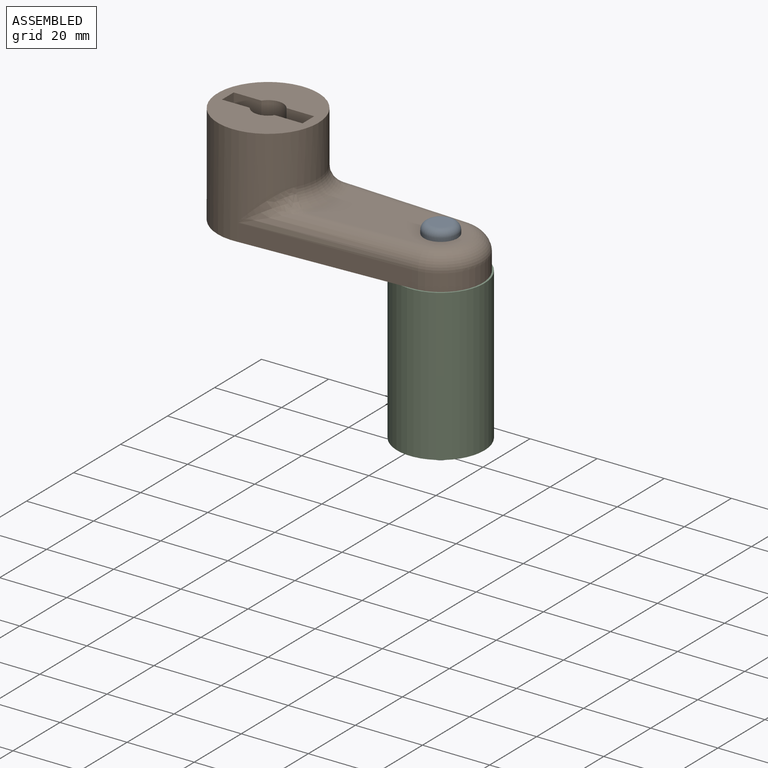
[diagram: assembled view]
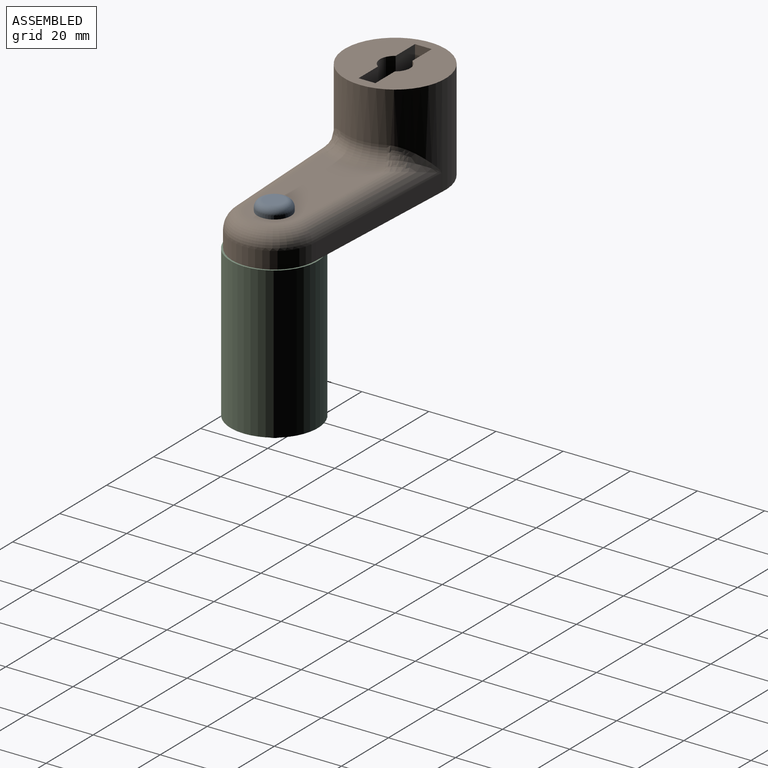
[diagram: assembled view, second angle]
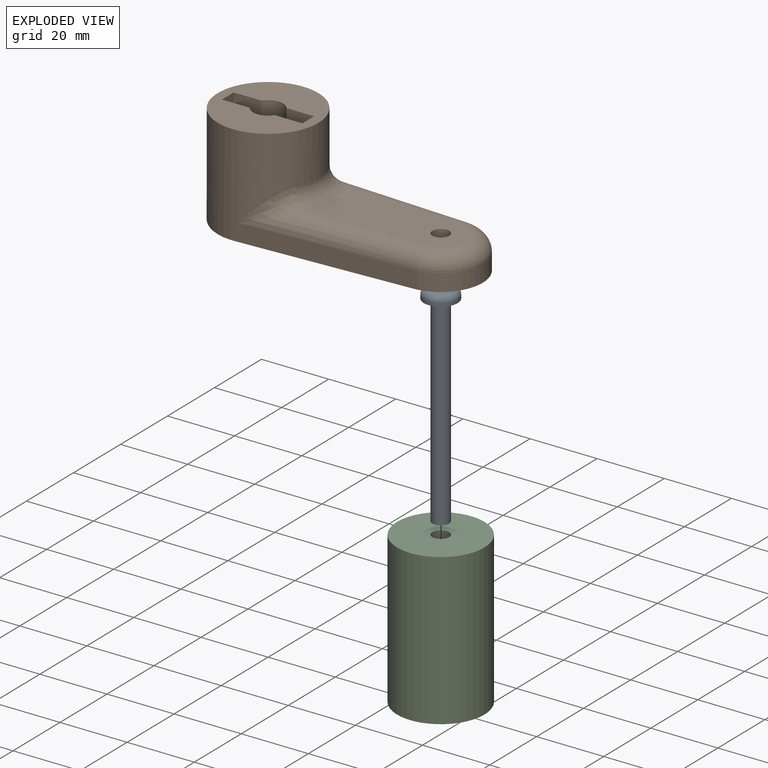
[diagram: exploded view]
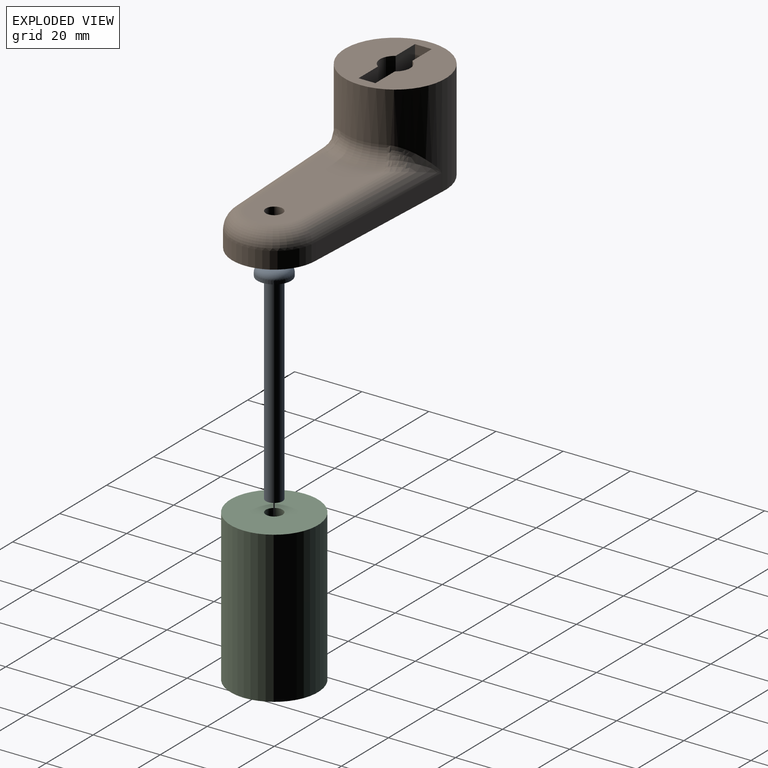
[diagram: exploded view, second angle]
ASSEMBLY  parts=3 mates=2
PART A: 6 faces, bbox 10.8x63x10.8 mm
  f0: cylinder r=2.5mm len=60mm, axis (0,-1,0), area 942.5mm2, adj f1,f4
  f1: plane 5x5mm, normal (0,1,0), area 19.6mm2, adj f0
  f2: cylinder r=5mm len=10mm, axis (0,1,0), area 31.4mm2, adj f4,f5
  f3: plane 6x6mm, normal (0,-1,0), area 28.3mm2, adj f5
  f4: plane 10x10mm, normal (0,1,0), area 58.9mm2, adj f0,f2
  f5: torus R=3mm, axis (0,-1,0), area 84.4mm2, adj f2,f3
PART B: 24 faces, bbox 80x30x30 mm
  f0: cylinder r=2.5mm len=10mm, axis (0,0,-1), area 157.1mm2, adj f2,f3
  f1: cylinder r=12.5mm len=25mm, axis (0,0,-1), area 196.3mm2, adj f3,f4,f5,f19
  f2: plane 41.15x18.26mm, normal (0,0,1), area 600.9mm2, adj f0,f17,f19,f20,f21
  f3: plane 78.94x30mm, normal (0,0,-1), area 1852.9mm2, adj f0,f1,f4,f5,f6,f7,f8,f9
  f4: plane 49.88x5mm, normal (0.05,1,0), area 249.7mm2, adj f1,f3,f16,f17
  f5: plane 49.88x5mm, normal (0.05,-1,0), area 249.7mm2, adj f1,f3,f21,f23
  f6: cylinder r=4.5mm len=30mm, axis (0,0,-1), area 265.1mm2, adj f3,f7,f13,f15
  f7: plane 30x8.26mm, normal (0,-1,0), area 247.8mm2, adj f3,f6,f8,f15
  f8: plane 30x5mm, normal (-1,0,0), area 150mm2, adj f3,f7,f9,f15
  f9: plane 30x8.26mm, normal (0,1,0), area 247.8mm2, adj f3,f8,f10,f15
  f10: cylinder r=4.5mm len=30mm, axis (0,0,-1), area 265.1mm2, adj f3,f9,f11,f15
  f11: plane 30x8.26mm, normal (0,1,0), area 247.8mm2, adj f3,f10,f12,f15
  f12: plane 30x5mm, normal (1,0,0), area 150mm2, adj f3,f11,f13,f15
  f13: plane 30x8.26mm, normal (0,-1,0), area 247.8mm2, adj f3,f6,f12,f15
  f14: cylinder r=15mm len=30mm, axis (0,0,-1), area 2269.2mm2, adj f3,f15,f16,f18,f20,f22,f23
  f15: plane 30x30mm, normal (0,0,1), area 565.8mm2, adj f6,f7,f8,f9,f10,f11,f12,f13
  f16: cylinder r=5mm len=5mm, axis (0,0,-1), area 1.1mm2, adj f3,f4,f14,f18
  f17: cylinder r=5mm len=50.26mm, axis (-1,0.05,0), area 321.7mm2, adj f2,f4,f18,f19
  f18: bspline ~16.71x10.1mm, area 70.4mm2, adj f14,f16,f17,f20
  f19: torus R=7.5mm, axis (0,0,-1), area 264.7mm2, adj f1,f2,f17,f21
  f20: torus R=20mm, axis (0,0,-1), area 125.2mm2, adj f2,f14,f18,f22
  f21: cylinder r=5mm len=50.26mm, axis (1,0.05,0), area 321.7mm2, adj f2,f5,f19,f22
  f22: bspline ~17.22x10.1mm, area 70.4mm2, adj f14,f20,f21,f23
  f23: cylinder r=5mm len=5mm, axis (0,0,-1), area 1.1mm2, adj f3,f5,f14,f22
PART C: 4 faces, bbox 26x26x45 mm
  f0: cylinder r=2.5mm len=45mm, axis (0,0,-1), area 706.9mm2, adj f2,f3
  f1: cylinder r=13mm len=45mm, axis (0,0,-1), area 3675.7mm2, adj f2,f3
  f2: plane 26x26mm, normal (0,0,1), area 511.3mm2, adj f0,f1
  f3: plane 26x26mm, normal (0,0,-1), area 511.3mm2, adj f0,f1
PLACE A rot(axis=(-1,0,0),90deg) t=(134.26,-34.63,10)mm
PLACE B at identity
PLACE C t=(51.44,0,-45)mm
MATE slider A.f0 <-> B.f0  axis (0,0,-1) through (51.44,0,10)mm
MATE revolute C.f0 <-> B.f0  axis (0,0,-1) through (51.44,0,0)mm
